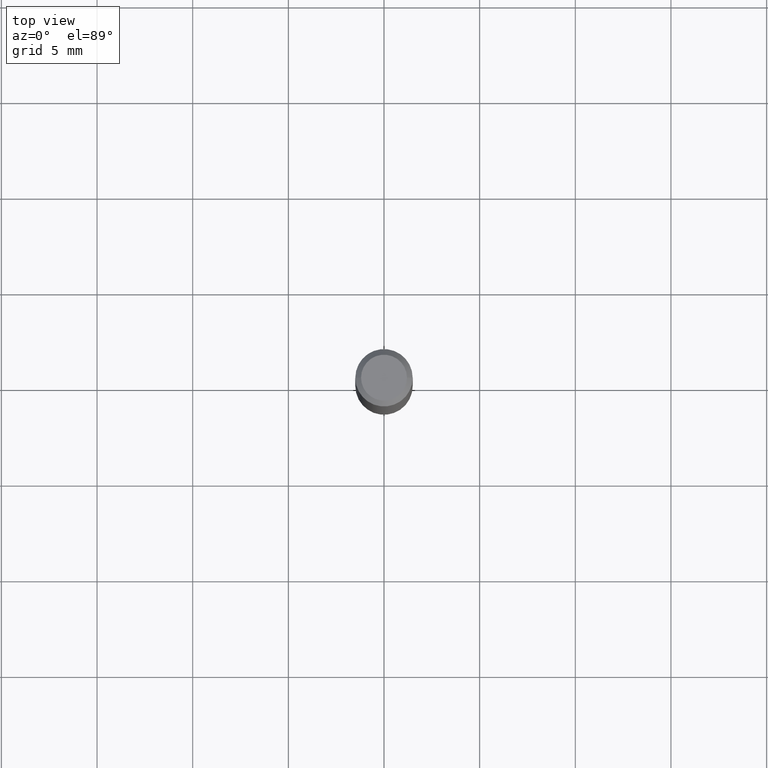
[diagram: clean part render]
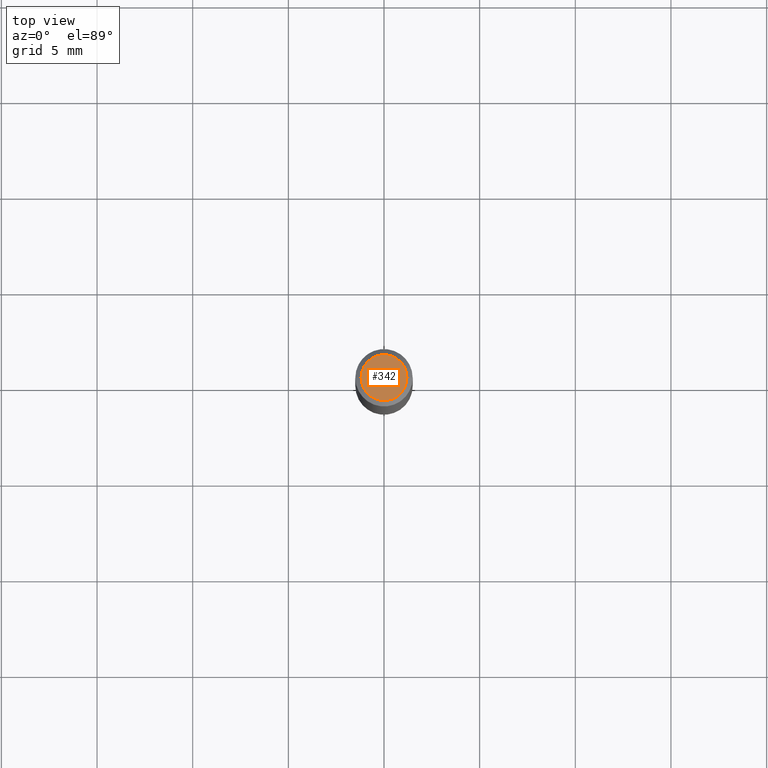
[diagram: same view with one face highlighted and labeled with its STEP entity id]
A machine part, top view. The second image highlights one B-rep face of the part: STEP entity #342.
In plain terms, the highlighted planar face has unit normal (0, -0, -1).
Its self-contained STEP definition (entity closure, byte-faithful):
#2 = EDGE_CURVE ( 'NONE', #147, #327, #171, .T. ) ;
#22 = AXIS2_PLACEMENT_3D ( 'NONE', #374, #413, #404 ) ;
#30 = ORIENTED_EDGE ( 'NONE', *, *, #2, .T. ) ;
#32 = DIRECTION ( 'NONE',  ( -2.445468806185136597E-29, 3.491481338843145583E-15, 1.000000000000000000 ) ) ;
#90 = CARTESIAN_POINT ( 'NONE',  ( 0.04724000000000000421, -3.852183633974369345E-16, -3.380025165621689721E-19 ) ) ;
#103 = FACE_OUTER_BOUND ( 'NONE', #449, .T. ) ;
#132 = AXIS2_PLACEMENT_3D ( 'NONE', #386, #169, #275 ) ;
#147 = VERTEX_POINT ( 'NONE', #90 ) ;
#169 = DIRECTION ( 'NONE',  ( -2.445468806185136597E-29, 3.491481338843145583E-15, 1.000000000000000000 ) ) ;
#171 = CIRCLE ( 'NONE', #132, 0.04724000000000000421 ) ;
#233 = CARTESIAN_POINT ( 'NONE',  ( 8.265746106709734507E-48, -1.180129479067563789E-33, -3.380025165646692144E-19 ) ) ;
#270 = PLANE ( 'NONE',  #22 ) ;
#272 = AXIS2_PLACEMENT_3D ( 'NONE', #233, #32, #297 ) ;
#275 = DIRECTION ( 'NONE',  ( 1.000000000000000000, -6.982962677686266711E-15, 4.876185090822587894E-29 ) ) ;
#297 = DIRECTION ( 'NONE',  ( 1.000000000000000000, -6.982962677686266711E-15, 4.876185090822587894E-29 ) ) ;
#322 = CARTESIAN_POINT ( 'NONE',  ( -0.04724000000000000421, 3.504923541997677355E-16, -3.380025165670481712E-19 ) ) ;
#327 = VERTEX_POINT ( 'NONE', #322 ) ;
#342 = ADVANCED_FACE ( 'NONE', ( #103 ), #270, .F. ) ;
#366 = ORIENTED_EDGE ( 'NONE', *, *, #423, .T. ) ;
#374 = CARTESIAN_POINT ( 'NONE',  ( 4.132873053354867254E-48, -5.900647395337818946E-34, -1.690012582823346072E-19 ) ) ;
#386 = CARTESIAN_POINT ( 'NONE',  ( 8.265746106709734507E-48, -1.180129479067563789E-33, -3.380025165646692144E-19 ) ) ;
#404 = DIRECTION ( 'NONE',  ( -1.000000000000000000, 6.982962677686265922E-15, -4.876176775795935793E-29 ) ) ;
#406 = CIRCLE ( 'NONE', #272, 0.04724000000000000421 ) ;
#413 = DIRECTION ( 'NONE',  ( 2.438088387897960049E-29, -3.491481338843145188E-15, -1.000000000000000000 ) ) ;
#423 = EDGE_CURVE ( 'NONE', #327, #147, #406, .T. ) ;
#449 = EDGE_LOOP ( 'NONE', ( #366, #30 ) ) ;